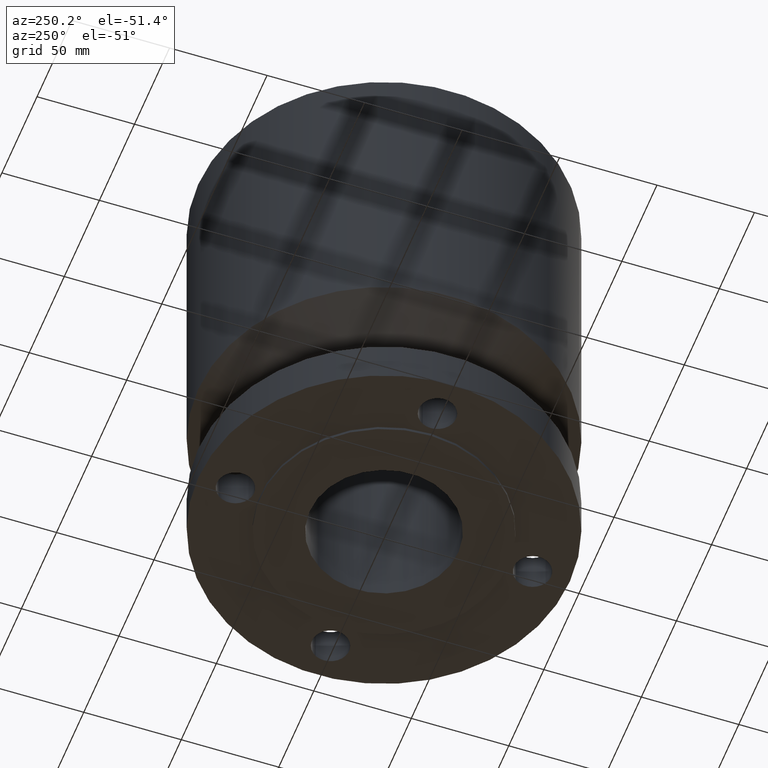
[diagram: clean part render]
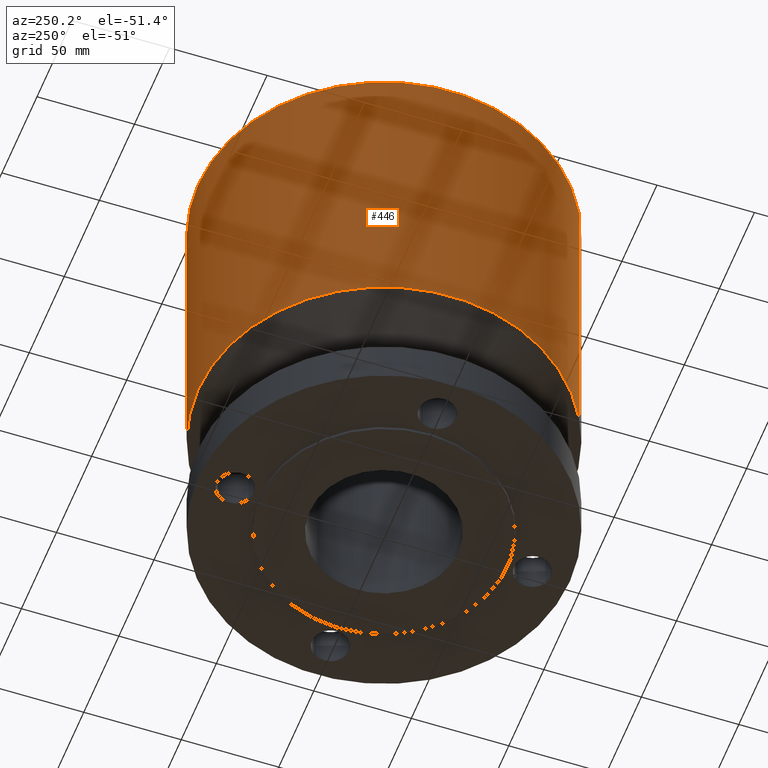
[diagram: same view with one face highlighted and labeled with its STEP entity id]
A machine part, auxiliary view. The second image highlights one B-rep face of the part: STEP entity #446.
In plain terms, the highlighted cylindrical surface (partial cylindrical patch) has radius 95.25 mm, axis along (0, 0, -1).
Its self-contained STEP definition (entity closure, byte-faithful):
#183=AXIS2_PLACEMENT_3D('Cylinder Axis2P3D',#180,#181,#182) ;
#399=AXIS2_PLACEMENT_3D('Circle Axis2P3D',#397,#398,$) ;
#437=AXIS2_PLACEMENT_3D('Circle Axis2P3D',#435,#436,$) ;
#180=CARTESIAN_POINT('Axis2P3D Location',(0.,0.,4.43750000002)) ;
#375=CARTESIAN_POINT('Vertex',(1.79784576977,3.2909346071,2.69569418744)) ;
#382=CARTESIAN_POINT('Vertex',(-1.79784576977,-3.2909346071,2.69569418744)) ;
#397=CARTESIAN_POINT('Axis2P3D Location',(0.,0.,2.69569418744)) ;
#409=CARTESIAN_POINT('Line Origine',(1.79784576977,3.2909346071,5.81659709374)) ;
#413=CARTESIAN_POINT('Vertex',(1.79784576977,3.2909346071,8.93750000004)) ;
#420=CARTESIAN_POINT('Vertex',(-1.79784576977,-3.2909346071,8.93750000004)) ;
#423=CARTESIAN_POINT('Line Origine',(-1.79784576977,-3.2909346071,5.81659709374)) ;
#435=CARTESIAN_POINT('Axis2P3D Location',(0.,0.,8.93750000004)) ;
#181=DIRECTION('Axis2P3D Direction',(0.,0.,-0.0393700787402)) ;
#182=DIRECTION('Axis2P3D XDirection',(-0.0188750212049,-0.0345504945626,0.)) ;
#398=DIRECTION('Axis2P3D Direction',(-0.,0.,0.0393700787402)) ;
#410=DIRECTION('Vector Direction',(0.,0.,-0.0393700787402)) ;
#424=DIRECTION('Vector Direction',(0.,0.,-0.0393700787402)) ;
#436=DIRECTION('Axis2P3D Direction',(0.,0.,-0.0393700787402)) ;
#411=VECTOR('Line Direction',#410,0.0393700787402) ;
#425=VECTOR('Line Direction',#424,0.0393700787402) ;
#441=ORIENTED_EDGE('',*,*,#401,.F.) ;
#442=ORIENTED_EDGE('',*,*,#427,.T.) ;
#443=ORIENTED_EDGE('',*,*,#439,.T.) ;
#444=ORIENTED_EDGE('',*,*,#415,.F.) ;
#446=ADVANCED_FACE('PartBody',(#445),#184,.T.) ;
#400=CIRCLE('generated circle',#399,3.75000000002) ;
#438=CIRCLE('generated circle',#437,3.75000000002) ;
#184=CYLINDRICAL_SURFACE('generated cylinder',#183,3.75000000002) ;
#401=EDGE_CURVE('',#383,#376,#400,.F.) ;
#415=EDGE_CURVE('',#376,#414,#412,.F.) ;
#427=EDGE_CURVE('',#383,#421,#426,.F.) ;
#439=EDGE_CURVE('',#421,#414,#438,.T.) ;
#440=EDGE_LOOP('',(#441,#442,#443,#444)) ;
#445=FACE_OUTER_BOUND('',#440,.T.) ;
#412=LINE('Line',#409,#411) ;
#426=LINE('Line',#423,#425) ;
#376=VERTEX_POINT('',#375) ;
#383=VERTEX_POINT('',#382) ;
#414=VERTEX_POINT('',#413) ;
#421=VERTEX_POINT('',#420) ;